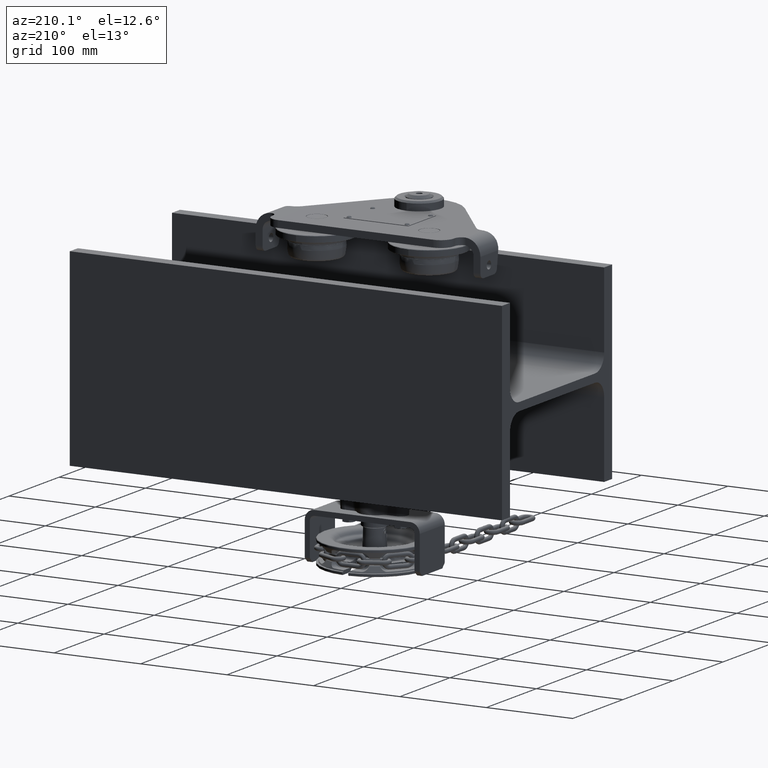
[diagram: clean part render]
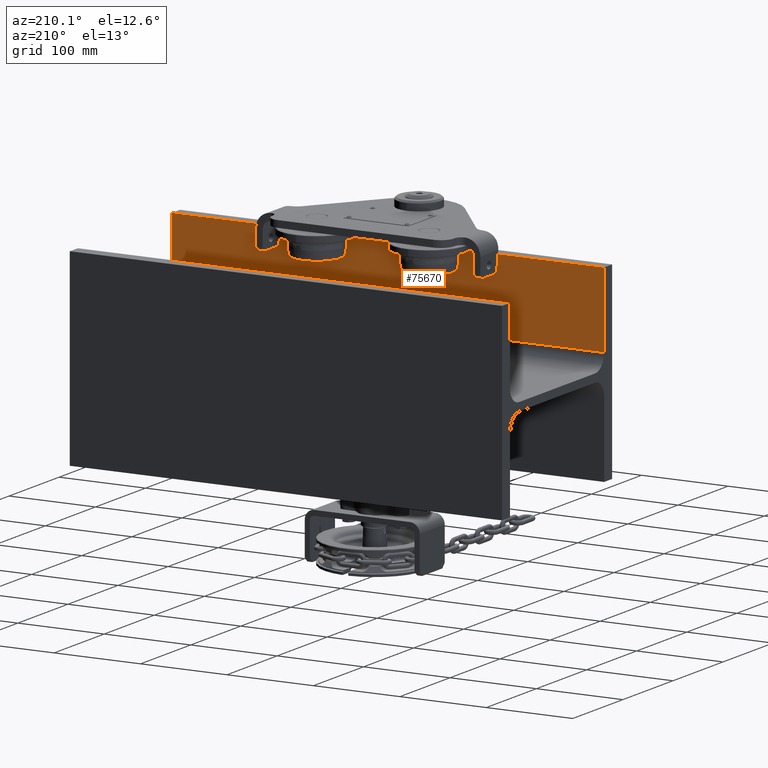
[diagram: same view with one face highlighted and labeled with its STEP entity id]
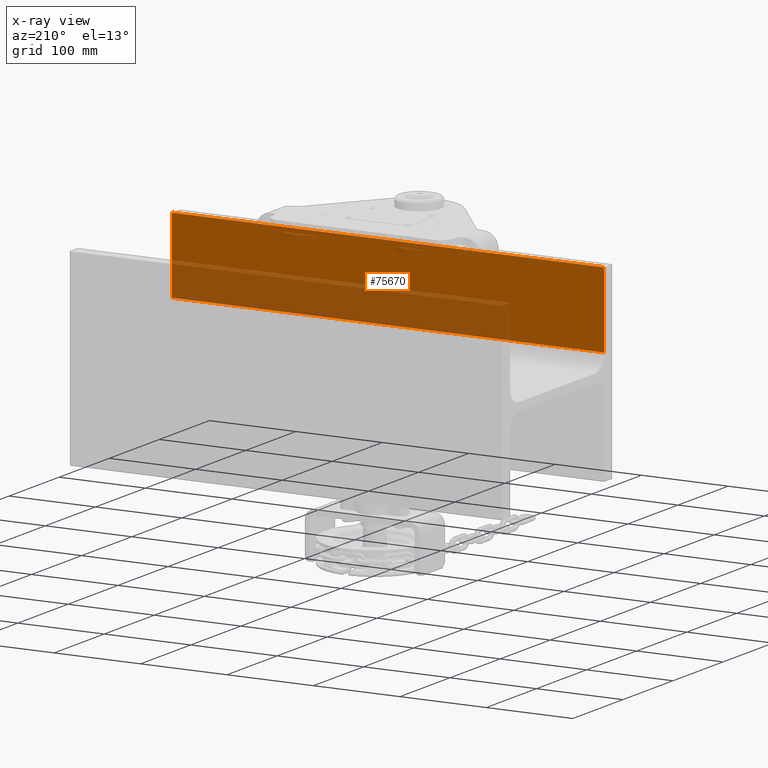
[diagram: x-ray of the same camera — body ghosted, the highlighted face saturated]
A machine part, auxiliary view. The second image highlights one B-rep face of the part: STEP entity #75670.
The next image is the same camera in x-ray: the body ghosted, the highlighted face saturated — about 36% of this face is hidden behind the body in this view.
In plain terms, the highlighted planar face has unit normal (0, -1, -0).
Its self-contained STEP definition (entity closure, byte-faithful):
#1190 = ORIENTED_EDGE ( 'NONE', *, *, #34158, .T. ) ;
#3253 = LINE ( 'NONE', #16034, #95396 ) ;
#5631 = CARTESIAN_POINT ( 'NONE',  ( -250.0000000000001100, -93.99999999999985800, 110.0000000000003000 ) ) ;
#14651 = LINE ( 'NONE', #29520, #71512 ) ;
#15204 = DIRECTION ( 'NONE',  ( 1.925929944387235900E-034, 2.667384474064545400E-015, -1.000000000000000000 ) ) ;
#16034 = CARTESIAN_POINT ( 'NONE',  ( -250.0000000000001100, -93.99999999999985800, 110.0000000000003000 ) ) ;
#18117 = AXIS2_PLACEMENT_3D ( 'NONE', #5631, #52083, #51715 ) ;
#18296 = LINE ( 'NONE', #48680, #54592 ) ;
#23652 = VERTEX_POINT ( 'NONE', #37889 ) ;
#29520 = CARTESIAN_POINT ( 'NONE',  ( 250.0000000000000000, -93.99999999999985800, 110.0000000000003000 ) ) ;
#29597 = LINE ( 'NONE', #72961, #87878 ) ;
#32540 = ORIENTED_EDGE ( 'NONE', *, *, #84070, .T. ) ;
#34130 = DIRECTION ( 'NONE',  ( 1.000000000000000000, 0.0000000000000000000, 7.703719777548941700E-034 ) ) ;
#34158 = EDGE_CURVE ( 'NONE', #23652, #100648, #3253, .T. ) ;
#37889 = CARTESIAN_POINT ( 'NONE',  ( -250.0000000000001100, -93.99999999999985800, 110.0000000000003000 ) ) ;
#39689 = EDGE_CURVE ( 'NONE', #45517, #91851, #18296, .T. ) ;
#42366 = CARTESIAN_POINT ( 'NONE',  ( -250.0000000000001100, -93.99999999999963100, 22.75000000000028400 ) ) ;
#42414 = FACE_OUTER_BOUND ( 'NONE', #76989, .T. ) ;
#43523 = ORIENTED_EDGE ( 'NONE', *, *, #74156, .F. ) ;
#45517 = VERTEX_POINT ( 'NONE', #42366 ) ;
#45820 = DIRECTION ( 'NONE',  ( 1.000000000000000000, 0.0000000000000000000, 7.703719777548941700E-034 ) ) ;
#48680 = CARTESIAN_POINT ( 'NONE',  ( -250.0000000000001100, -93.99999999999963100, 22.75000000000028400 ) ) ;
#51715 = DIRECTION ( 'NONE',  ( 1.925929944387235900E-034, 2.667384474064545400E-015, -1.000000000000000000 ) ) ;
#52083 = DIRECTION ( 'NONE',  ( 5.054512059200142900E-049, -1.000000000000000000, -2.667384474064545400E-015 ) ) ;
#54592 = VECTOR ( 'NONE', #34130, 1000.000000000000000 ) ;
#57067 = DIRECTION ( 'NONE',  ( 1.925929944387235900E-034, 2.667384474064545400E-015, -1.000000000000000000 ) ) ;
#57871 = CARTESIAN_POINT ( 'NONE',  ( 250.0000000000000000, -93.99999999999985800, 110.0000000000003000 ) ) ;
#69439 = CARTESIAN_POINT ( 'NONE',  ( 250.0000000000000000, -93.99999999999963100, 22.75000000000028400 ) ) ;
#71512 = VECTOR ( 'NONE', #15204, 1000.000000000000000 ) ;
#72064 = PLANE ( 'NONE',  #18117 ) ;
#72961 = CARTESIAN_POINT ( 'NONE',  ( -250.0000000000001100, -93.99999999999985800, 110.0000000000003000 ) ) ;
#74156 = EDGE_CURVE ( 'NONE', #23652, #45517, #29597, .T. ) ;
#75670 = ADVANCED_FACE ( 'NONE', ( #42414 ), #72064, .F. ) ;
#76989 = EDGE_LOOP ( 'NONE', ( #32540, #90341, #43523, #1190 ) ) ;
#84070 = EDGE_CURVE ( 'NONE', #100648, #91851, #14651, .T. ) ;
#87878 = VECTOR ( 'NONE', #57067, 1000.000000000000000 ) ;
#90341 = ORIENTED_EDGE ( 'NONE', *, *, #39689, .F. ) ;
#91851 = VERTEX_POINT ( 'NONE', #69439 ) ;
#95396 = VECTOR ( 'NONE', #45820, 1000.000000000000000 ) ;
#100648 = VERTEX_POINT ( 'NONE', #57871 ) ;